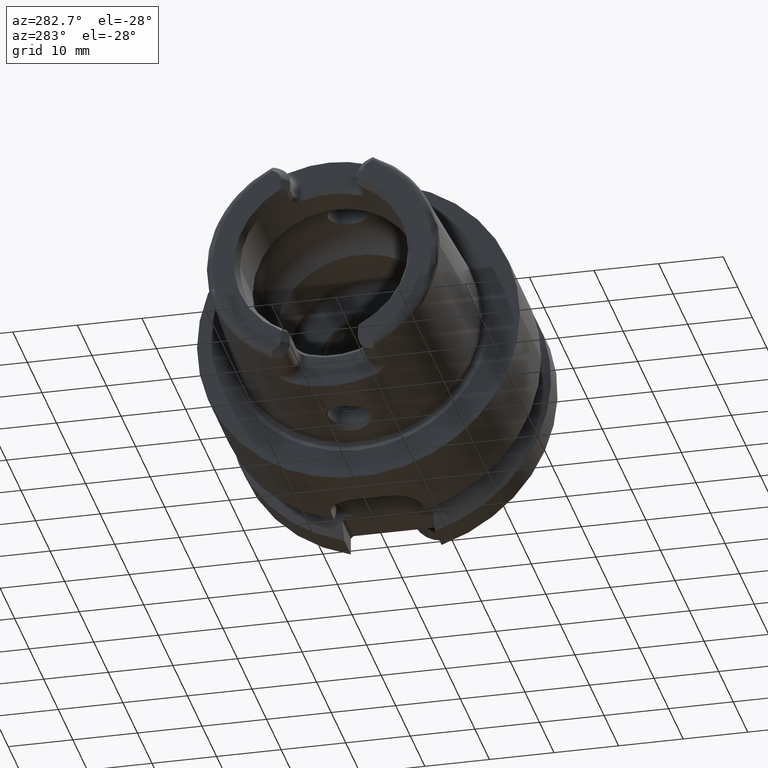
[diagram: clean part render]
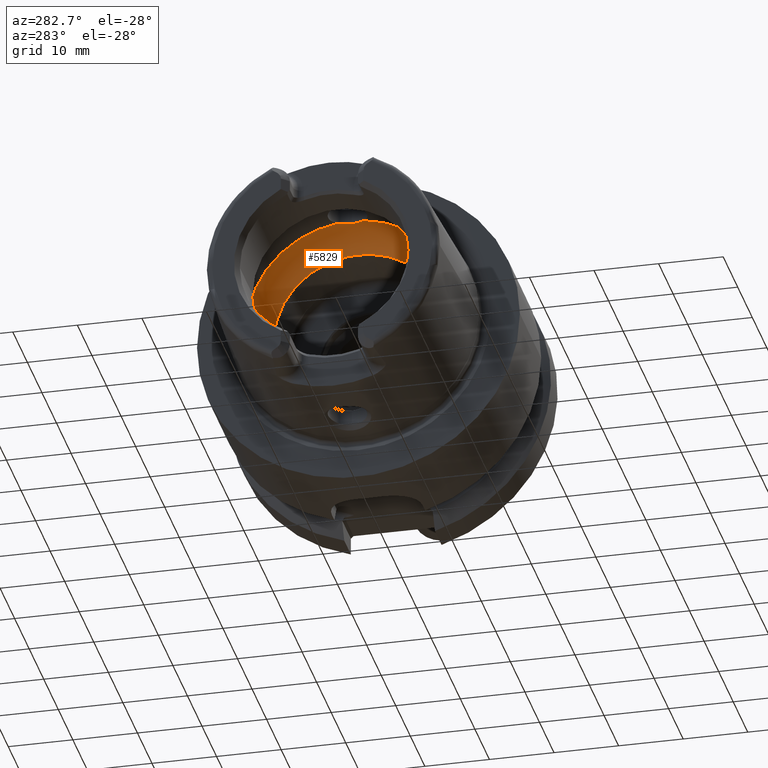
[diagram: same view with one face highlighted and labeled with its STEP entity id]
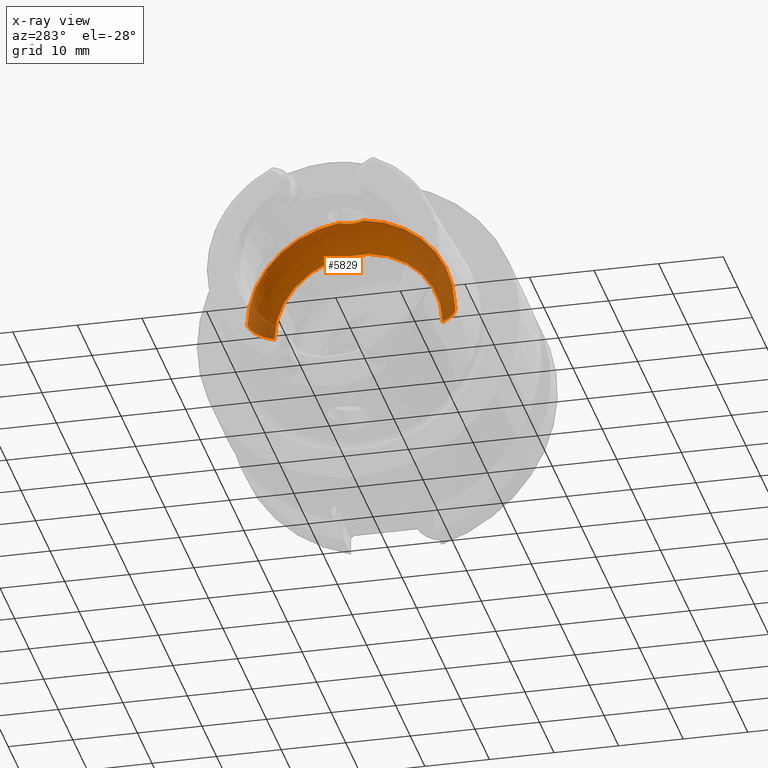
[diagram: x-ray of the same camera — body ghosted, the highlighted face saturated]
A machine part, auxiliary view. The second image highlights one B-rep face of the part: STEP entity #5829.
The next image is the same camera in x-ray: the body ghosted, the highlighted face saturated — about 29% of this face is hidden behind the body in this view.
In plain terms, the highlighted toroidal blend (fillet) surface has major radius 10.04 mm and minor (blend) radius 6 mm.
Its self-contained STEP definition (entity closure, byte-faithful):
#2132=CARTESIAN_POINT('',(-4.5E0,0.E0,1.599819131363E1));
#2133=CARTESIAN_POINT('',(-4.5E0,1.393933285662E-1,1.599819131363E1));
#2134=CARTESIAN_POINT('',(-4.519404191081E0,4.194544956419E-1,
1.599688659151E1));
#2135=CARTESIAN_POINT('',(-4.608514252748E0,8.368427430076E-1,
1.599033330284E1));
#2136=CARTESIAN_POINT('',(-4.756111350291E0,1.237284710770E0,1.597758887261E1));
#2137=CARTESIAN_POINT('',(-4.955426617124E0,1.607186531253E0,1.595666056940E1));
#2138=CARTESIAN_POINT('',(-5.118862175482E0,1.829998924173E0,1.593561410958E1));
#2139=CARTESIAN_POINT('',(-5.207075858867E0,1.934553923521E0,1.592291120106E1));
#2141=CARTESIAN_POINT('',(-5.207075858867E0,-1.934553923521E0,
1.592291120106E1));
#2142=CARTESIAN_POINT('',(-5.118900024865E0,-1.830043785039E0,
1.593560865920E1));
#2143=CARTESIAN_POINT('',(-4.955463769315E0,-1.607278697505E0,
1.595665773659E1));
#2144=CARTESIAN_POINT('',(-4.755897029316E0,-1.236851245102E0,
1.597761021240E1));
#2145=CARTESIAN_POINT('',(-4.608377605542E0,-8.363601809663E-1,
1.599034363703E1));
#2146=CARTESIAN_POINT('',(-4.519347393058E0,-4.189919635640E-1,
1.599689053867E1));
#2147=CARTESIAN_POINT('',(-4.5E0,-1.392080742489E-1,1.599819131363E1));
#2148=CARTESIAN_POINT('',(-4.5E0,0.E0,1.599819131363E1));
#2150=CARTESIAN_POINT('',(0.E0,0.E0,0.E0));
#2151=DIRECTION('',(1.E0,0.E0,0.E0));
#2152=DIRECTION('',(0.E0,1.E0,0.E0));
#2153=AXIS2_PLACEMENT_3D('',#2150,#2151,#2152);
#2174=CARTESIAN_POINT('',(-5.207075858867E0,0.E0,0.E0));
#2175=DIRECTION('',(1.E0,0.E0,0.E0));
#2176=DIRECTION('',(0.E0,1.E0,0.E0));
#2177=AXIS2_PLACEMENT_3D('',#2174,#2175,#2176);
#2179=CARTESIAN_POINT('',(-5.207075858867E0,0.E0,0.E0));
#2180=DIRECTION('',(1.E0,0.E0,0.E0));
#2181=DIRECTION('',(0.E0,-1.206080999702E-1,9.927001995676E-1));
#2182=AXIS2_PLACEMENT_3D('',#2179,#2180,#2181);
#2268=CARTESIAN_POINT('',(-5.207075858867E0,1.004E1,0.E0));
#2269=DIRECTION('',(0.E0,0.E0,1.E0));
#2270=DIRECTION('',(8.678459764779E-1,4.968333333333E-1,0.E0));
#2271=AXIS2_PLACEMENT_3D('',#2268,#2269,#2270);
#2278=CARTESIAN_POINT('',(-5.207075858867E0,-1.004E1,0.E0));
#2279=DIRECTION('',(0.E0,0.E0,-1.E0));
#2280=DIRECTION('',(8.678459764779E-1,-4.968333333333E-1,0.E0));
#2281=AXIS2_PLACEMENT_3D('',#2278,#2279,#2280);
#3076=CARTESIAN_POINT('',(-4.5E0,0.E0,1.599819131363E1));
#3077=VERTEX_POINT('',#3076);
#3098=CARTESIAN_POINT('',(0.E0,1.3021E1,0.E0));
#3099=VERTEX_POINT('',#3098);
#3100=CARTESIAN_POINT('',(-5.207075858867E0,1.604E1,0.E0));
#3101=VERTEX_POINT('',#3100);
#3110=CARTESIAN_POINT('',(0.E0,-1.3021E1,0.E0));
#3111=VERTEX_POINT('',#3110);
#3112=CARTESIAN_POINT('',(-5.207075858867E0,-1.604E1,0.E0));
#3113=VERTEX_POINT('',#3112);
#3130=VERTEX_POINT('',#2139);
#3131=VERTEX_POINT('',#2141);
#5810=CARTESIAN_POINT('',(-5.207075858867E0,0.E0,0.E0));
#5811=DIRECTION('',(1.E0,0.E0,0.E0));
#5812=DIRECTION('',(0.E0,-1.E0,0.E0));
#5813=AXIS2_PLACEMENT_3D('',#5810,#5811,#5812);
#5814=TOROIDAL_SURFACE('',#5813,1.004E1,6.E0);
#5815=ORIENTED_EDGE('',*,*,#5787,.F.);
#5816=ORIENTED_EDGE('',*,*,#5561,.F.);
#5818=ORIENTED_EDGE('',*,*,#5817,.T.);
#5820=ORIENTED_EDGE('',*,*,#5819,.F.);
#5822=ORIENTED_EDGE('',*,*,#5821,.F.);
#5824=ORIENTED_EDGE('',*,*,#5823,.T.);
#5826=ORIENTED_EDGE('',*,*,#5825,.T.);
#5827=EDGE_LOOP('',(#5815,#5816,#5818,#5820,#5822,#5824,#5826));
#5828=FACE_OUTER_BOUND('',#5827,.F.);
#5829=ADVANCED_FACE('',(#5828),#5814,.F.);
#2140=B_SPLINE_CURVE_WITH_KNOTS('',3,(#2132,#2133,#2134,#2135,#2136,#2137,#2138,
#2139),.UNSPECIFIED.,.F.,.F.,(4,1,1,1,1,4),(0.E0,2.E-1,4.E-1,6.E-1,8.E-1,1.E0),
.UNSPECIFIED.);
#2149=B_SPLINE_CURVE_WITH_KNOTS('',3,(#2141,#2142,#2143,#2144,#2145,#2146,#2147,
#2148),.UNSPECIFIED.,.F.,.F.,(4,1,1,1,1,4),(0.E0,2.E-1,4.E-1,6.E-1,8.E-1,1.E0),
.UNSPECIFIED.);
#2154=CIRCLE('',#2153,1.3021E1);
#2178=CIRCLE('',#2177,1.604E1);
#2183=CIRCLE('',#2182,1.604E1);
#2272=CIRCLE('',#2271,6.E0);
#2282=CIRCLE('',#2281,6.E0);
#5561=EDGE_CURVE('',#3131,#3077,#2149,.T.);
#5787=EDGE_CURVE('',#3077,#3130,#2140,.T.);
#5817=EDGE_CURVE('',#3131,#3113,#2183,.T.);
#5819=EDGE_CURVE('',#3111,#3113,#2282,.T.);
#5821=EDGE_CURVE('',#3099,#3111,#2154,.T.);
#5823=EDGE_CURVE('',#3099,#3101,#2272,.T.);
#5825=EDGE_CURVE('',#3101,#3130,#2178,.T.);